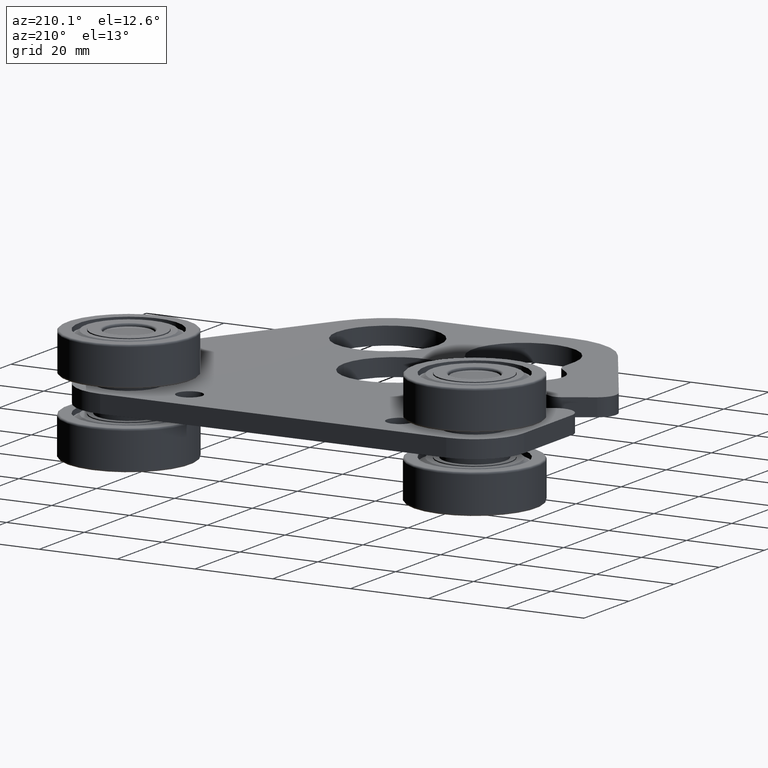
[diagram: clean part render]
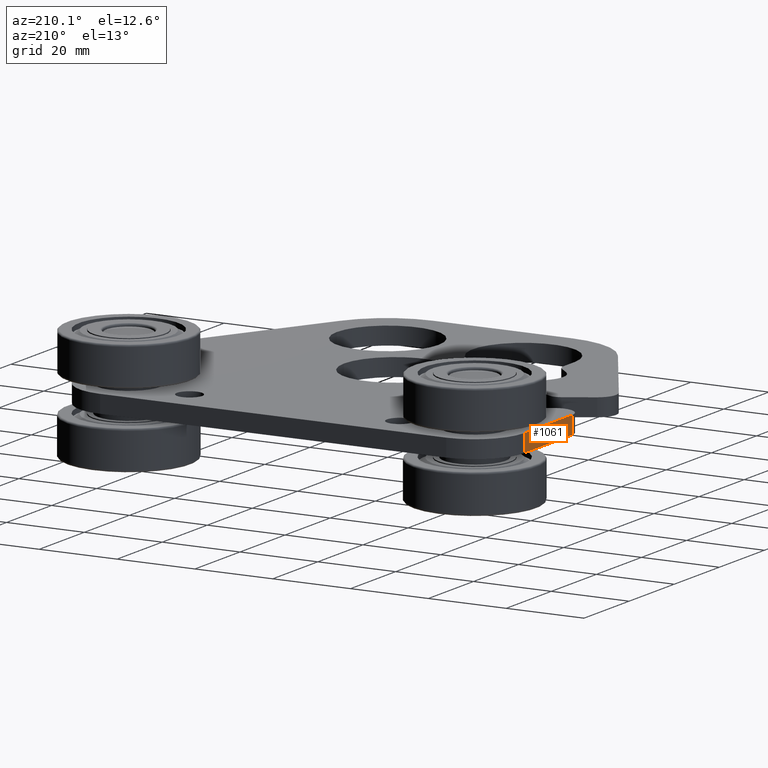
[diagram: same view with one face highlighted and labeled with its STEP entity id]
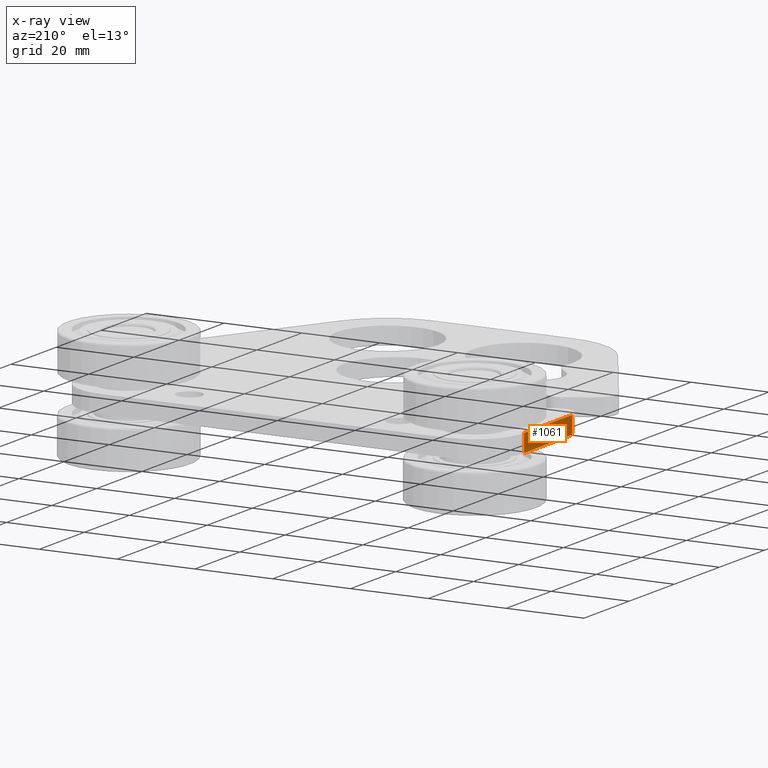
[diagram: x-ray of the same camera — body ghosted, the highlighted face saturated]
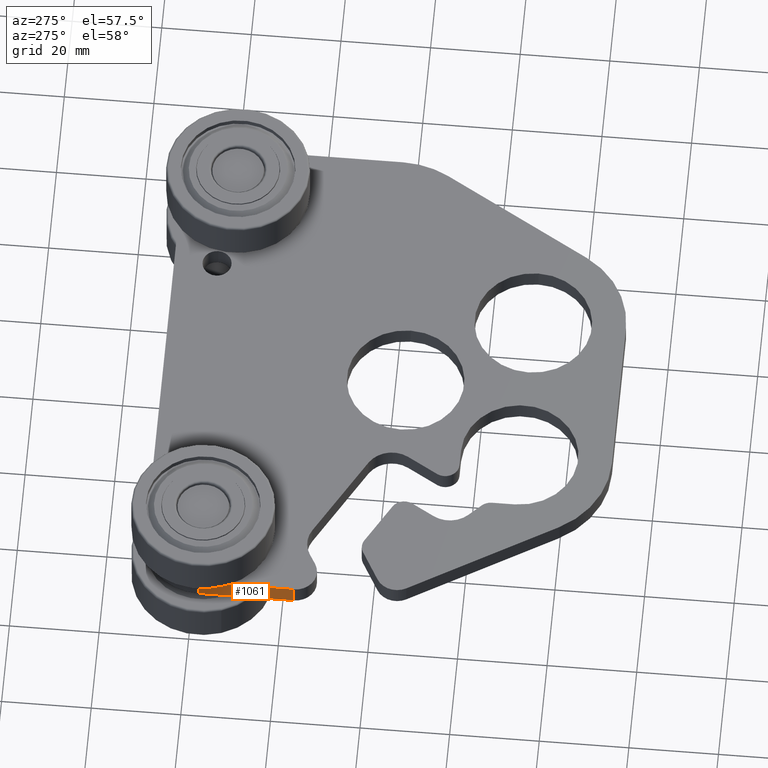
[diagram: same view with one face highlighted and labeled with its STEP entity id]
A machine part, auxiliary view. The second image highlights one B-rep face of the part: STEP entity #1061.
The next image is the same camera in x-ray: the body ghosted, the highlighted face saturated — about 0% of this face is hidden behind the body in this view.
A second angle (auxiliary view) of the same face is appended — the face is thin or edge-on in the first view.
In plain terms, the highlighted planar face has unit normal (-1, 0, 0).
Its self-contained STEP definition (entity closure, byte-faithful):
#348=CARTESIAN_POINT('',(-2.25,0.661808801678512,0.0));
#349=VERTEX_POINT('',#348);
#357=CARTESIAN_POINT('',(-2.25,1.5,0.0));
#358=VERTEX_POINT('',#357);
#359=CARTESIAN_POINT('',(-2.25,0.661808801678512,0.0));
#360=DIRECTION('',(0.0,1.0,0.0));
#361=VECTOR('',#360,0.838191198321488);
#362=LINE('',#359,#361);
#363=EDGE_CURVE('',#349,#358,#362,.T.);
#545=CARTESIAN_POINT('',(-2.25,1.5,0.179));
#546=VERTEX_POINT('',#545);
#563=CARTESIAN_POINT('',(-2.25,1.5,0.0));
#564=DIRECTION('',(0.0,0.0,1.0));
#565=VECTOR('',#564,0.179);
#566=LINE('',#563,#565);
#567=EDGE_CURVE('',#358,#546,#566,.T.);
#1020=CARTESIAN_POINT('',(-2.25,0.661808801678512,0.179));
#1021=VERTEX_POINT('',#1020);
#1029=CARTESIAN_POINT('',(-2.25,0.661808801678512,0.179));
#1030=DIRECTION('',(0.0,0.0,-1.0));
#1031=VECTOR('',#1030,0.179);
#1032=LINE('',#1029,#1031);
#1033=EDGE_CURVE('',#1021,#349,#1032,.T.);
#1045=CARTESIAN_POINT('',(-2.25,0.336,0.0));
#1046=DIRECTION('',(-1.0,0.0,0.0));
#1047=DIRECTION('',(0.0,0.0,1.0));
#1048=AXIS2_PLACEMENT_3D('',#1045,#1046,#1047);
#1049=PLANE('',#1048);
#1050=ORIENTED_EDGE('',*,*,#567,.F.);
#1051=ORIENTED_EDGE('',*,*,#363,.F.);
#1052=ORIENTED_EDGE('',*,*,#1033,.F.);
#1053=CARTESIAN_POINT('',(-2.25,0.661808801678512,0.179));
#1054=DIRECTION('',(0.0,1.0,0.0));
#1055=VECTOR('',#1054,0.838191198321488);
#1056=LINE('',#1053,#1055);
#1057=EDGE_CURVE('',#1021,#546,#1056,.T.);
#1058=ORIENTED_EDGE('',*,*,#1057,.T.);
#1059=EDGE_LOOP('',(#1050,#1051,#1052,#1058));
#1060=FACE_OUTER_BOUND('',#1059,.T.);
#1061=ADVANCED_FACE('',(#1060),#1049,.T.);